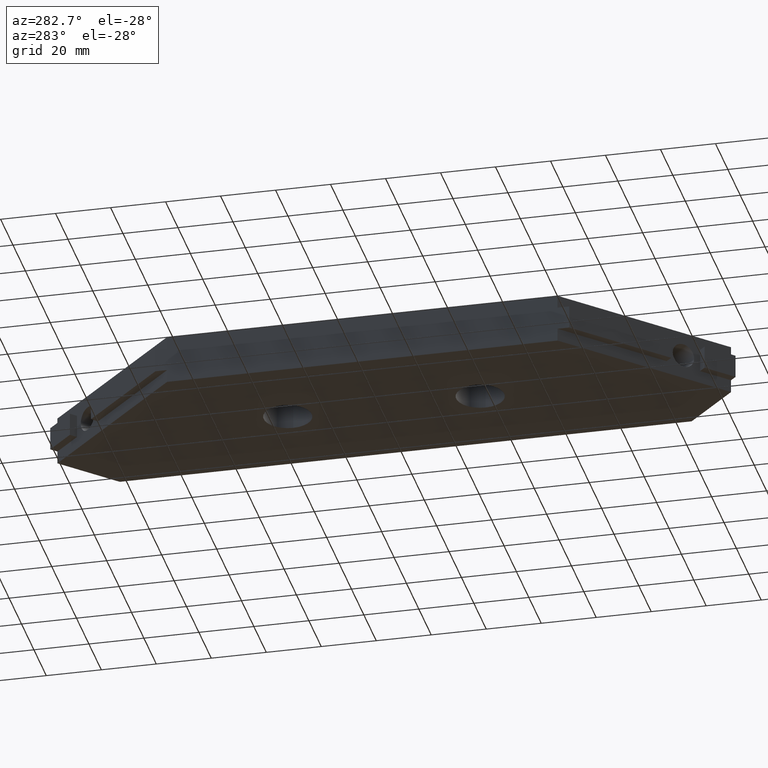
[diagram: clean part render]
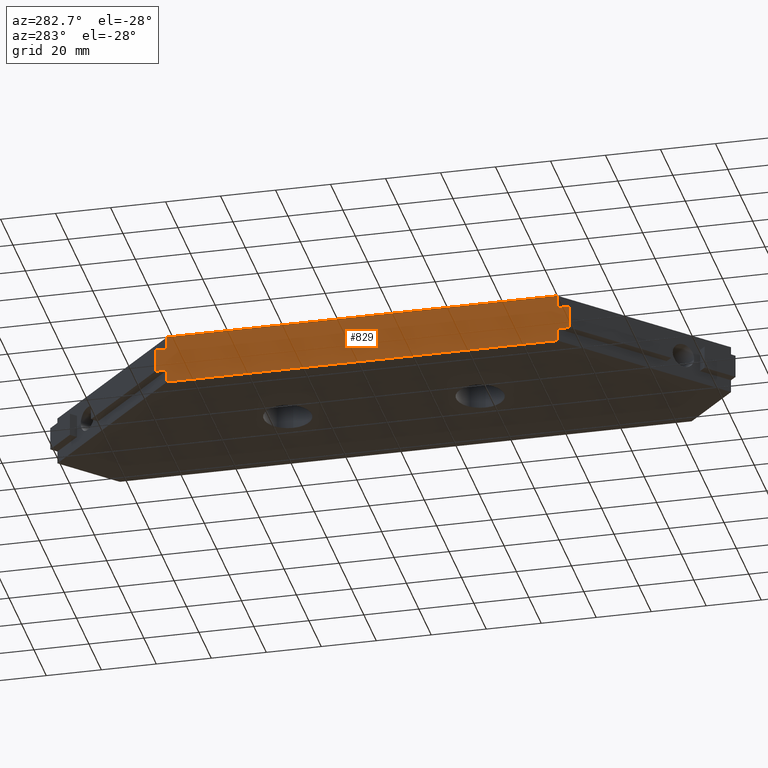
[diagram: same view with one face highlighted and labeled with its STEP entity id]
A machine part, auxiliary view. The second image highlights one B-rep face of the part: STEP entity #829.
In plain terms, the highlighted planar face has unit normal (1, 0, 0).
Its self-contained STEP definition (entity closure, byte-faithful):
#129=CARTESIAN_POINT('',(0.0,70.999999999716010,0.0));
#130=VERTEX_POINT('',#129);
#137=CARTESIAN_POINT('',(-2.842171E-014,70.999999999716010,4.750000000000000));
#138=VERTEX_POINT('',#137);
#139=CARTESIAN_POINT('',(0.0,70.999999999716010,4.750000000000000));
#140=DIRECTION('',(0.0,0.0,-1.0));
#141=VECTOR('',#140,4.750000000000000);
#142=LINE('',#139,#141);
#143=EDGE_CURVE('',#138,#130,#142,.T.);
#161=CARTESIAN_POINT('',(-2.842171E-014,70.999999999716010,13.250000000000000));
#162=VERTEX_POINT('',#161);
#169=CARTESIAN_POINT('',(0.0,70.999999999716010,18.0));
#170=VERTEX_POINT('',#169);
#171=CARTESIAN_POINT('',(0.0,70.999999999716010,18.0));
#172=DIRECTION('',(0.0,0.0,-1.0));
#173=VECTOR('',#172,4.750000000000000);
#174=LINE('',#171,#173);
#175=EDGE_CURVE('',#170,#162,#174,.T.);
#211=CARTESIAN_POINT('',(0.0,-70.999999999716010,18.0));
#212=VERTEX_POINT('',#211);
#213=CARTESIAN_POINT('',(0.0,-70.999999999716010,13.250000000000000));
#214=VERTEX_POINT('',#213);
#215=CARTESIAN_POINT('',(0.0,-70.999999999716010,18.0));
#216=DIRECTION('',(0.0,0.0,-1.0));
#217=VECTOR('',#216,4.750000000000000);
#218=LINE('',#215,#217);
#219=EDGE_CURVE('',#212,#214,#218,.T.);
#237=CARTESIAN_POINT('',(0.0,-70.999999999716010,4.750000000000000));
#238=VERTEX_POINT('',#237);
#245=CARTESIAN_POINT('',(0.0,-70.999999999716010,0.0));
#246=VERTEX_POINT('',#245);
#247=CARTESIAN_POINT('',(0.0,-70.999999999716010,4.750000000000000));
#248=DIRECTION('',(0.0,0.0,-1.0));
#249=VECTOR('',#248,4.750000000000000);
#250=LINE('',#247,#249);
#251=EDGE_CURVE('',#238,#246,#250,.T.);
#343=CARTESIAN_POINT('',(0.0,70.999999999716010,18.0));
#344=DIRECTION('',(0.0,-1.0,0.0));
#345=VECTOR('',#344,141.999999999432020);
#346=LINE('',#343,#345);
#347=EDGE_CURVE('',#170,#212,#346,.T.);
#411=CARTESIAN_POINT('',(0.0,70.999999999716010,0.0));
#412=DIRECTION('',(0.0,-1.0,0.0));
#413=VECTOR('',#412,141.999999999432020);
#414=LINE('',#411,#413);
#415=EDGE_CURVE('',#130,#246,#414,.T.);
#542=CARTESIAN_POINT('',(-2.842171E-014,75.242640999699006,4.750000000000000));
#543=VERTEX_POINT('',#542);
#550=CARTESIAN_POINT('',(-2.842171E-014,75.242640999699006,13.250000000000000));
#551=VERTEX_POINT('',#550);
#552=CARTESIAN_POINT('',(-2.842171E-014,75.242640999699006,4.750000000000000));
#553=DIRECTION('',(0.0,0.0,1.0));
#554=VECTOR('',#553,8.500000000000000);
#555=LINE('',#552,#554);
#556=EDGE_CURVE('',#543,#551,#555,.T.);
#575=CARTESIAN_POINT('',(-2.842171E-014,75.242640999699006,4.750000000000000));
#576=DIRECTION('',(0.0,-1.0,0.0));
#577=VECTOR('',#576,4.242640999982996);
#578=LINE('',#575,#577);
#579=EDGE_CURVE('',#543,#138,#578,.T.);
#591=CARTESIAN_POINT('',(-2.842171E-014,75.242640999699006,13.250000000000000));
#592=DIRECTION('',(0.0,-1.0,0.0));
#593=VECTOR('',#592,4.242640999982996);
#594=LINE('',#591,#593);
#595=EDGE_CURVE('',#551,#162,#594,.T.);
#719=CARTESIAN_POINT('',(0.0,-75.242640999699063,4.750000000000000));
#720=VERTEX_POINT('',#719);
#737=CARTESIAN_POINT('',(0.0,-75.242640999699063,13.250000000000000));
#738=VERTEX_POINT('',#737);
#745=CARTESIAN_POINT('',(0.0,-75.242640999699063,4.750000000000000));
#746=DIRECTION('',(0.0,0.0,1.0));
#747=VECTOR('',#746,8.500000000000000);
#748=LINE('',#745,#747);
#749=EDGE_CURVE('',#720,#738,#748,.T.);
#781=CARTESIAN_POINT('',(0.0,-70.999999999716010,4.750000000000000));
#782=DIRECTION('',(0.0,-1.0,0.0));
#783=VECTOR('',#782,4.242640999983053);
#784=LINE('',#781,#783);
#785=EDGE_CURVE('',#238,#720,#784,.T.);
#801=CARTESIAN_POINT('',(0.0,-70.999999999716010,13.250000000000000));
#802=DIRECTION('',(0.0,-1.0,0.0));
#803=VECTOR('',#802,4.242640999983053);
#804=LINE('',#801,#803);
#805=EDGE_CURVE('',#214,#738,#804,.T.);
#810=CARTESIAN_POINT('',(0.0,75.242684306786259,18.000043307087253));
#811=DIRECTION('',(1.0,0.0,0.0));
#812=DIRECTION('',(0.0,-1.0,0.0));
#813=AXIS2_PLACEMENT_3D('',#810,#811,#812);
#814=PLANE('',#813);
#815=ORIENTED_EDGE('',*,*,#175,.T.);
#816=ORIENTED_EDGE('',*,*,#595,.F.);
#817=ORIENTED_EDGE('',*,*,#556,.F.);
#818=ORIENTED_EDGE('',*,*,#579,.T.);
#819=ORIENTED_EDGE('',*,*,#143,.T.);
#820=ORIENTED_EDGE('',*,*,#415,.T.);
#821=ORIENTED_EDGE('',*,*,#251,.F.);
#822=ORIENTED_EDGE('',*,*,#785,.T.);
#823=ORIENTED_EDGE('',*,*,#749,.T.);
#824=ORIENTED_EDGE('',*,*,#805,.F.);
#825=ORIENTED_EDGE('',*,*,#219,.F.);
#826=ORIENTED_EDGE('',*,*,#347,.F.);
#827=EDGE_LOOP('',(#815,#816,#817,#818,#819,#820,#821,#822,#823,#824,#825,#826));
#828=FACE_OUTER_BOUND('',#827,.T.);
#829=ADVANCED_FACE('',(#828),#814,.F.);